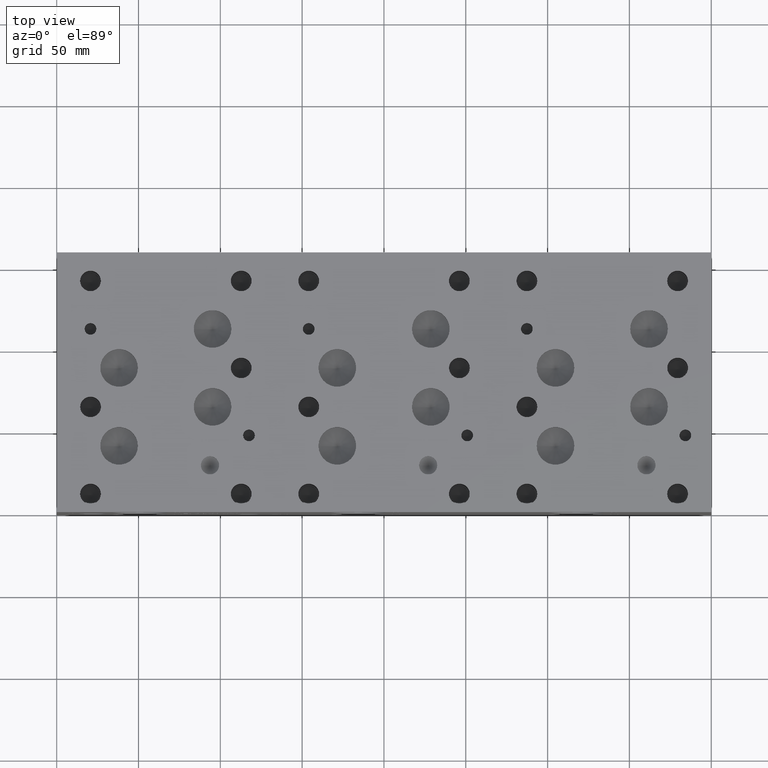
[diagram: clean part render]
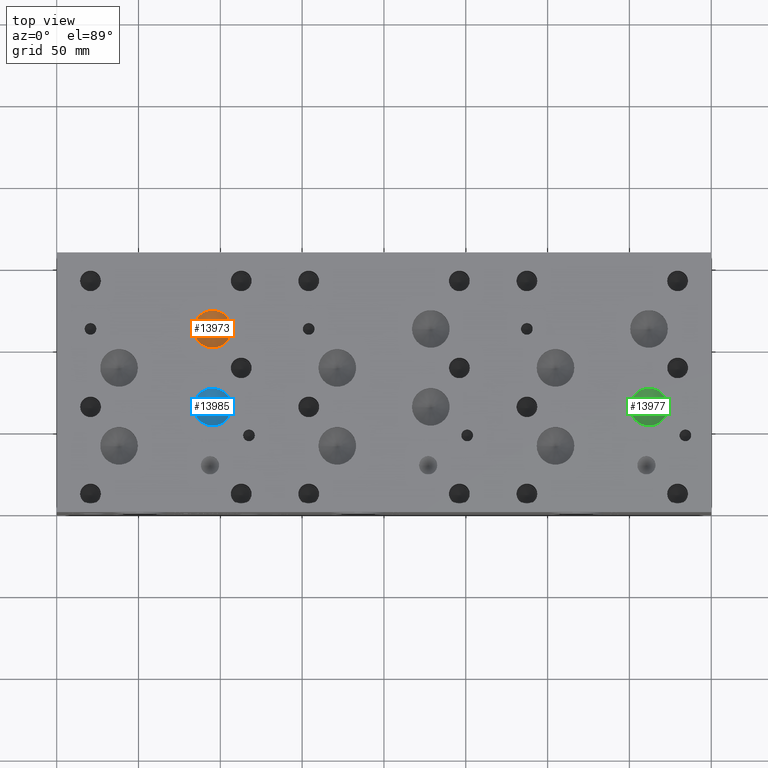
[diagram: same view with three faces highlighted in distinct colors, each labeled with its STEP entity id]
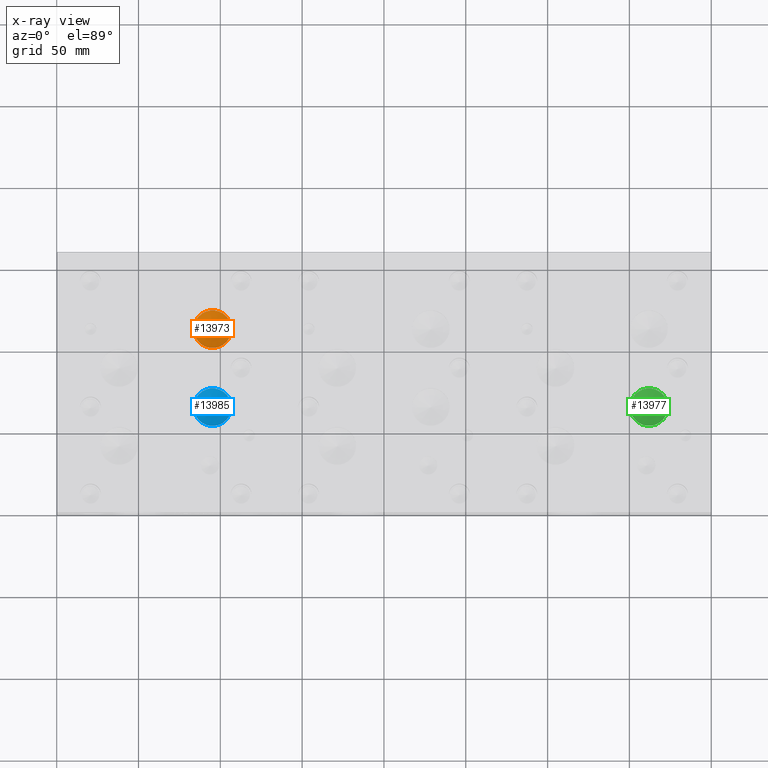
[diagram: x-ray of the same camera — body ghosted, the three highlighted faces saturated]
A machine part, top view with three faces highlighted in distinct colors.
The next image is the same camera in x-ray (body ghosted, the three faces saturated) — at least one of them is partly hidden behind the body in this view.
Their STEP definitions:

[orange] entity #13973 — the highlighted conical surface has half-angle 60 deg.
#130=CONICAL_SURFACE('',#14670,5.75437,1.0471975511966);
#481=CIRCLE('',#14671,11.50874);
#482=CIRCLE('',#14672,11.50874);
#1791=FACE_OUTER_BOUND('',#2602,.T.);
#2602=EDGE_LOOP('',(#11838,#11839,#11840,#11841));
#3930=LINE('',#23716,#5179);
#5179=VECTOR('',#17283,5.75437);
#6396=VERTEX_POINT('',#23712);
#6397=VERTEX_POINT('',#23713);
#6398=VERTEX_POINT('',#23715);
#8281=EDGE_CURVE('',#6396,#6397,#481,.T.);
#8282=EDGE_CURVE('',#6397,#6398,#3930,.T.);
#8283=EDGE_CURVE('',#6397,#6396,#482,.T.);
#11838=ORIENTED_EDGE('',*,*,#8281,.T.);
#11839=ORIENTED_EDGE('',*,*,#8282,.T.);
#11840=ORIENTED_EDGE('',*,*,#8282,.F.);
#11841=ORIENTED_EDGE('',*,*,#8283,.T.);
#13973=ADVANCED_FACE('',(#1791),#130,.F.);
#14670=AXIS2_PLACEMENT_3D('',#23711,#17279,#17280);
#14671=AXIS2_PLACEMENT_3D('',#23714,#17281,#17282);
#14672=AXIS2_PLACEMENT_3D('',#23717,#17284,#17285);
#17279=DIRECTION('center_axis',(0.,0.,1.));
#17280=DIRECTION('ref_axis',(1.,0.,0.));
#17281=DIRECTION('center_axis',(0.,0.,1.));
#17282=DIRECTION('ref_axis',(1.,0.,0.));
#17283=DIRECTION('',(0.866025403784439,1.06057523872491E-16,-0.5));
#17284=DIRECTION('center_axis',(0.,0.,1.));
#17285=DIRECTION('ref_axis',(1.,0.,0.));
#23711=CARTESIAN_POINT('Origin',(95.25,111.9124,110.683142931483));
#23712=CARTESIAN_POINT('',(106.75874,111.9124,114.00543));
#23713=CARTESIAN_POINT('',(83.74126,111.9124,114.00543));
#23714=CARTESIAN_POINT('Origin',(95.25,111.9124,114.00543));
#23715=CARTESIAN_POINT('',(95.25,111.9124,107.360855862967));
#23716=CARTESIAN_POINT('',(89.49563,111.9124,110.683142931483));
#23717=CARTESIAN_POINT('Origin',(95.25,111.9124,114.00543));

[blue] entity #13985 — the highlighted conical surface has half-angle 60 deg.
#136=CONICAL_SURFACE('',#14706,5.7531,1.0471975511966);
#505=CIRCLE('',#14707,11.5062);
#506=CIRCLE('',#14708,11.5062);
#1803=FACE_OUTER_BOUND('',#2614,.T.);
#2614=EDGE_LOOP('',(#11898,#11899,#11900,#11901));
#3942=LINE('',#23794,#5191);
#5191=VECTOR('',#17367,5.7531);
#6426=VERTEX_POINT('',#23790);
#6427=VERTEX_POINT('',#23791);
#6428=VERTEX_POINT('',#23793);
#8317=EDGE_CURVE('',#6426,#6427,#505,.T.);
#8318=EDGE_CURVE('',#6427,#6428,#3942,.T.);
#8319=EDGE_CURVE('',#6427,#6426,#506,.T.);
#11898=ORIENTED_EDGE('',*,*,#8317,.T.);
#11899=ORIENTED_EDGE('',*,*,#8318,.T.);
#11900=ORIENTED_EDGE('',*,*,#8318,.F.);
#11901=ORIENTED_EDGE('',*,*,#8319,.T.);
#13985=ADVANCED_FACE('',(#1803),#136,.F.);
#14706=AXIS2_PLACEMENT_3D('',#23789,#17363,#17364);
#14707=AXIS2_PLACEMENT_3D('',#23792,#17365,#17366);
#14708=AXIS2_PLACEMENT_3D('',#23795,#17368,#17369);
#17363=DIRECTION('center_axis',(0.,0.,1.));
#17364=DIRECTION('ref_axis',(1.,0.,0.));
#17365=DIRECTION('center_axis',(0.,0.,1.));
#17366=DIRECTION('ref_axis',(1.,0.,0.));
#17367=DIRECTION('',(0.866025403784439,1.06057523872491E-16,-0.5));
#17368=DIRECTION('center_axis',(0.,0.,1.));
#17369=DIRECTION('ref_axis',(1.,0.,0.));
#23789=CARTESIAN_POINT('Origin',(95.25,64.2874,110.685336166325));
#23790=CARTESIAN_POINT('',(106.7562,64.2874,114.00689));
#23791=CARTESIAN_POINT('',(83.7438,64.2874,114.00689));
#23792=CARTESIAN_POINT('Origin',(95.25,64.2874,114.00689));
#23793=CARTESIAN_POINT('',(95.25,64.2874,107.36378233265));
#23794=CARTESIAN_POINT('',(89.4969,64.2874,110.685336166325));
#23795=CARTESIAN_POINT('Origin',(95.25,64.2874,114.00689));

[green] entity #13977 — the highlighted conical surface has half-angle 60 deg.
#132=CONICAL_SURFACE('',#14682,5.7531,1.0471975511966);
#489=CIRCLE('',#14683,11.5062);
#490=CIRCLE('',#14684,11.5062);
#1795=FACE_OUTER_BOUND('',#2606,.T.);
#2606=EDGE_LOOP('',(#11858,#11859,#11860,#11861));
#3934=LINE('',#23742,#5183);
#5183=VECTOR('',#17311,5.7531);
#6406=VERTEX_POINT('',#23738);
#6407=VERTEX_POINT('',#23739);
#6408=VERTEX_POINT('',#23741);
#8293=EDGE_CURVE('',#6406,#6407,#489,.T.);
#8294=EDGE_CURVE('',#6407,#6408,#3934,.T.);
#8295=EDGE_CURVE('',#6407,#6406,#490,.T.);
#11858=ORIENTED_EDGE('',*,*,#8293,.T.);
#11859=ORIENTED_EDGE('',*,*,#8294,.T.);
#11860=ORIENTED_EDGE('',*,*,#8294,.F.);
#11861=ORIENTED_EDGE('',*,*,#8295,.T.);
#13977=ADVANCED_FACE('',(#1795),#132,.F.);
#14682=AXIS2_PLACEMENT_3D('',#23737,#17307,#17308);
#14683=AXIS2_PLACEMENT_3D('',#23740,#17309,#17310);
#14684=AXIS2_PLACEMENT_3D('',#23743,#17312,#17313);
#17307=DIRECTION('center_axis',(0.,0.,1.));
#17308=DIRECTION('ref_axis',(1.,0.,0.));
#17309=DIRECTION('center_axis',(0.,0.,1.));
#17310=DIRECTION('ref_axis',(1.,0.,0.));
#17311=DIRECTION('',(0.866025403784439,1.06057523872491E-16,-0.5));
#17312=DIRECTION('center_axis',(0.,0.,1.));
#17313=DIRECTION('ref_axis',(1.,0.,0.));
#23737=CARTESIAN_POINT('Origin',(361.95,64.2874,110.685336166325));
#23738=CARTESIAN_POINT('',(373.4562,64.2874,114.00689));
#23739=CARTESIAN_POINT('',(350.4438,64.2874,114.00689));
#23740=CARTESIAN_POINT('Origin',(361.95,64.2874,114.00689));
#23741=CARTESIAN_POINT('',(361.95,64.2874,107.36378233265));
#23742=CARTESIAN_POINT('',(356.1969,64.2874,110.685336166325));
#23743=CARTESIAN_POINT('Origin',(361.95,64.2874,114.00689));